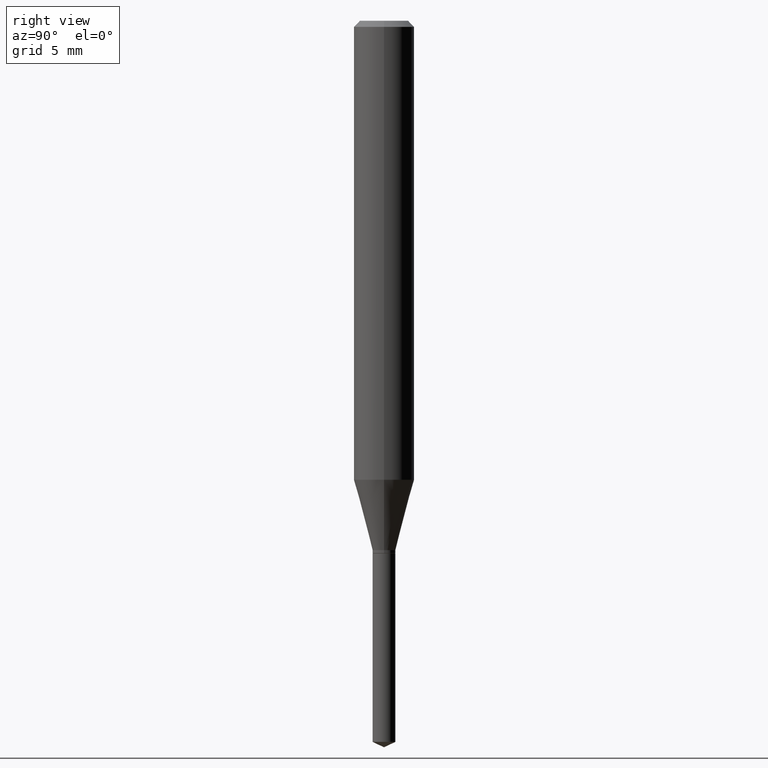
[diagram: clean part render]
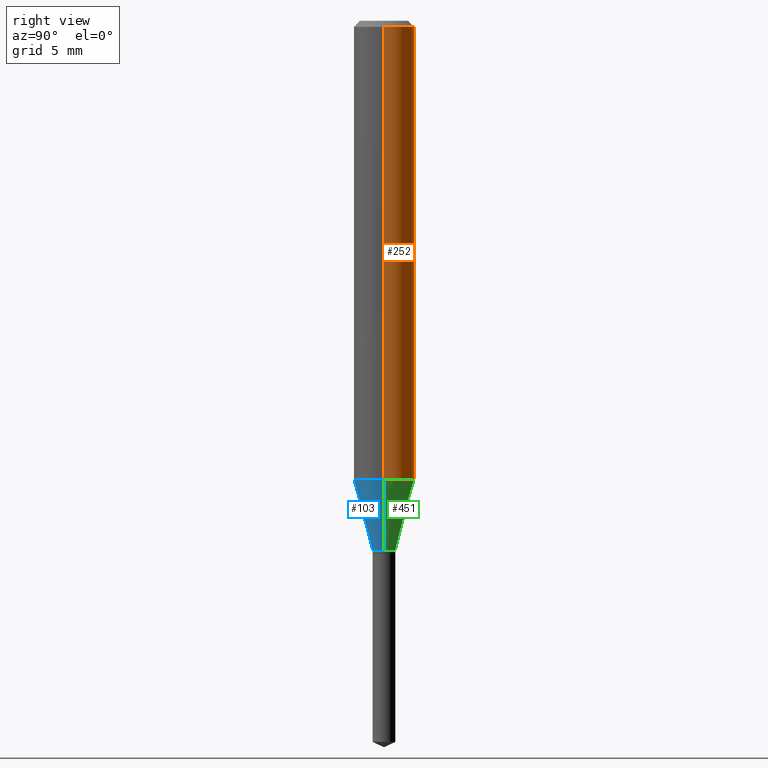
[diagram: same view with three faces highlighted in distinct colors, each labeled with its STEP entity id]
A machine part, right view with three faces highlighted in distinct colors.
Their STEP definitions:

[orange] entity #252 — the highlighted cylindrical surface (edge-blend (fillet) strip) has radius 1.5875 mm, axis along (-0, 0, 1).
#10 = CARTESIAN_POINT ( 'NONE',  ( 0.000000000000000000, 0.000000000000000000, 0.000000000000000000 ) ) ;
#25 = CARTESIAN_POINT ( 'NONE',  ( -0.06250000000000012490, -2.864868739687227081E-15, -0.9477232235855707065 ) ) ;
#33 = CARTESIAN_POINT ( 'NONE',  ( -0.06250000000000001388, -1.232211523286351422E-15, -0.01250000000000008916 ) ) ;
#35 = EDGE_LOOP ( 'NONE', ( #185, #374, #308, #489 ) ) ;
#42 = AXIS2_PLACEMENT_3D ( 'NONE', #181, #96, #140 ) ;
#71 = VECTOR ( 'NONE', #118, 39.37007874015748143 ) ;
#96 = DIRECTION ( 'NONE',  ( -2.445468806185136597E-29, 3.491481338843145583E-15, 1.000000000000000000 ) ) ;
#106 = AXIS2_PLACEMENT_3D ( 'NONE', #409, #365, #327 ) ;
#108 = VERTEX_POINT ( 'NONE', #244 ) ;
#118 = DIRECTION ( 'NONE',  ( -2.445468806185136877E-29, 3.491481338843145188E-15, 1.000000000000000000 ) ) ;
#140 = DIRECTION ( 'NONE',  ( 1.000000000000000000, -6.982962677686264344E-15, 0.000000000000000000 ) ) ;
#163 = FACE_OUTER_BOUND ( 'NONE', #35, .T. ) ;
#168 = EDGE_CURVE ( 'NONE', #339, #108, #315, .T. ) ;
#181 = CARTESIAN_POINT ( 'NONE',  ( 2.317627580175734983E-29, -3.308957949537290487E-15, -0.9477232235855707065 ) ) ;
#185 = ORIENTED_EDGE ( 'NONE', *, *, #275, .T. ) ;
#188 = VECTOR ( 'NONE', #397, 39.37007874015748143 ) ;
#195 = EDGE_CURVE ( 'NONE', #413, #417, #323, .T. ) ;
#212 = CARTESIAN_POINT ( 'NONE',  ( 0.06250000000000012490, -3.745393116892682550E-15, -0.9477232235855707065 ) ) ;
#238 = CYLINDRICAL_SURFACE ( 'NONE', #470, 0.06250000000000006939 ) ;
#244 = CARTESIAN_POINT ( 'NONE',  ( 0.06250000000000001388, -4.800786840909313294E-16, -0.01250000000000008916 ) ) ;
#252 = ADVANCED_FACE ( 'NONE', ( #163 ), #238, .T. ) ;
#271 = DIRECTION ( 'NONE',  ( -2.445468806185136597E-29, 3.491481338843145583E-15, 1.000000000000000000 ) ) ;
#275 = EDGE_CURVE ( 'NONE', #339, #413, #359, .T. ) ;
#298 = EDGE_CURVE ( 'NONE', #108, #417, #414, .T. ) ;
#308 = ORIENTED_EDGE ( 'NONE', *, *, #298, .F. ) ;
#315 = LINE ( 'NONE', #352, #188 ) ;
#323 = LINE ( 'NONE', #464, #71 ) ;
#327 = DIRECTION ( 'NONE',  ( 1.000000000000000000, -6.982962677686265922E-15, 0.000000000000000000 ) ) ;
#339 = VERTEX_POINT ( 'NONE', #212 ) ;
#352 = CARTESIAN_POINT ( 'NONE',  ( 0.06250000000000006939, -4.364351673553921624E-16, 3.047610484872463374E-30 ) ) ;
#359 = CIRCLE ( 'NONE', #42, 0.06250000000000012490 ) ;
#365 = DIRECTION ( 'NONE',  ( -2.445468806185136597E-29, 3.491481338843145583E-15, 1.000000000000000000 ) ) ;
#374 = ORIENTED_EDGE ( 'NONE', *, *, #195, .T. ) ;
#392 = DIRECTION ( 'NONE',  ( 1.000000000000000000, -6.982962677686266711E-15, 4.876176775795935793E-29 ) ) ;
#397 = DIRECTION ( 'NONE',  ( -2.445468806185136877E-29, 3.491481338843145188E-15, 1.000000000000000000 ) ) ;
#409 = CARTESIAN_POINT ( 'NONE',  ( 3.056836007731442729E-31, -4.364351673553962300E-17, -0.01250000000000008916 ) ) ;
#413 = VERTEX_POINT ( 'NONE', #25 ) ;
#414 = CIRCLE ( 'NONE', #106, 0.06250000000000001388 ) ;
#417 = VERTEX_POINT ( 'NONE', #33 ) ;
#464 = CARTESIAN_POINT ( 'NONE',  ( -0.06250000000000006939, 4.440892098500631092E-16, -3.074334431409319267E-30 ) ) ;
#470 = AXIS2_PLACEMENT_3D ( 'NONE', #10, #271, #392 ) ;
#489 = ORIENTED_EDGE ( 'NONE', *, *, #168, .F. ) ;

[blue] entity #103 — the highlighted conical surface has half-angle 15 deg.
#18 = EDGE_LOOP ( 'NONE', ( #127, #178, #94, #177 ) ) ;
#21 = CIRCLE ( 'NONE', #50, 0.02360000000000000292 ) ;
#25 = CARTESIAN_POINT ( 'NONE',  ( -0.06250000000000012490, -2.864868739687227081E-15, -0.9477232235855707065 ) ) ;
#40 = CARTESIAN_POINT ( 'NONE',  ( -0.02360000000000000292, -3.648151869582290642E-15, -1.092900000000000205 ) ) ;
#50 = AXIS2_PLACEMENT_3D ( 'NONE', #398, #207, #167 ) ;
#80 = VECTOR ( 'NONE', #272, 39.37007874015747433 ) ;
#94 = ORIENTED_EDGE ( 'NONE', *, *, #112, .T. ) ;
#103 = ADVANCED_FACE ( 'NONE', ( #423 ), #449, .T. ) ;
#112 = EDGE_CURVE ( 'NONE', #159, #339, #460, .T. ) ;
#120 = CARTESIAN_POINT ( 'NONE',  ( 2.672652858279736287E-29, -3.815839955221674751E-15, -1.092900000000000205 ) ) ;
#121 = EDGE_CURVE ( 'NONE', #413, #339, #126, .T. ) ;
#126 = CIRCLE ( 'NONE', #385, 0.06250000000000012490 ) ;
#127 = ORIENTED_EDGE ( 'NONE', *, *, #245, .F. ) ;
#159 = VERTEX_POINT ( 'NONE', #280 ) ;
#167 = DIRECTION ( 'NONE',  ( 1.000000000000000000, -6.982962677686258033E-15, 0.000000000000000000 ) ) ;
#174 = DIRECTION ( 'NONE',  ( 1.000000000000000000, -6.982962677686264344E-15, 0.000000000000000000 ) ) ;
#177 = ORIENTED_EDGE ( 'NONE', *, *, #121, .F. ) ;
#178 = ORIENTED_EDGE ( 'NONE', *, *, #213, .T. ) ;
#198 = DIRECTION ( 'NONE',  ( -0.2588190451025213501, 5.211531920934551042E-15, 0.9659258262890682012 ) ) ;
#207 = DIRECTION ( 'NONE',  ( -2.445468806185136597E-29, 3.491481338843145583E-15, 1.000000000000000000 ) ) ;
#212 = CARTESIAN_POINT ( 'NONE',  ( 0.06250000000000012490, -3.745393116892682550E-15, -0.9477232235855707065 ) ) ;
#213 = EDGE_CURVE ( 'NONE', #372, #159, #21, .T. ) ;
#223 = AXIS2_PLACEMENT_3D ( 'NONE', #120, #267, #307 ) ;
#245 = EDGE_CURVE ( 'NONE', #372, #413, #389, .T. ) ;
#267 = DIRECTION ( 'NONE',  ( -2.445468806185136597E-29, 3.491481338843145583E-15, 1.000000000000000000 ) ) ;
#272 = DIRECTION ( 'NONE',  ( 0.2588190451025213501, 1.565188264969621968E-15, 0.9659258262890682012 ) ) ;
#277 = CARTESIAN_POINT ( 'NONE',  ( 0.02360000000000000292, -3.980637874415070210E-15, -1.092900000000000205 ) ) ;
#280 = CARTESIAN_POINT ( 'NONE',  ( 0.02360000000000000292, -3.980637874415070210E-15, -1.092900000000000205 ) ) ;
#307 = DIRECTION ( 'NONE',  ( 1.000000000000000000, -6.982962677686258033E-15, 0.000000000000000000 ) ) ;
#331 = CARTESIAN_POINT ( 'NONE',  ( -0.02360000000000000292, -3.659673758000472566E-15, -1.092900000000000205 ) ) ;
#339 = VERTEX_POINT ( 'NONE', #212 ) ;
#372 = VERTEX_POINT ( 'NONE', #331 ) ;
#385 = AXIS2_PLACEMENT_3D ( 'NONE', #427, #431, #174 ) ;
#389 = LINE ( 'NONE', #40, #442 ) ;
#398 = CARTESIAN_POINT ( 'NONE',  ( 2.672652858279736287E-29, -3.815839955221674751E-15, -1.092900000000000205 ) ) ;
#413 = VERTEX_POINT ( 'NONE', #25 ) ;
#423 = FACE_OUTER_BOUND ( 'NONE', #18, .T. ) ;
#427 = CARTESIAN_POINT ( 'NONE',  ( 2.317627580175734983E-29, -3.308957949537290487E-15, -0.9477232235855707065 ) ) ;
#431 = DIRECTION ( 'NONE',  ( -2.445468806185136597E-29, 3.491481338843145583E-15, 1.000000000000000000 ) ) ;
#442 = VECTOR ( 'NONE', #198, 39.37007874015747433 ) ;
#449 = CONICAL_SURFACE ( 'NONE', #223, 0.02360000000000000292, 0.2617993877991500740 ) ;
#460 = LINE ( 'NONE', #277, #80 ) ;

[green] entity #451 — the highlighted conical surface has half-angle 15 deg.
#25 = CARTESIAN_POINT ( 'NONE',  ( -0.06250000000000012490, -2.864868739687227081E-15, -0.9477232235855707065 ) ) ;
#40 = CARTESIAN_POINT ( 'NONE',  ( -0.02360000000000000292, -3.648151869582290642E-15, -1.092900000000000205 ) ) ;
#42 = AXIS2_PLACEMENT_3D ( 'NONE', #181, #96, #140 ) ;
#60 = ORIENTED_EDGE ( 'NONE', *, *, #112, .F. ) ;
#69 = DIRECTION ( 'NONE',  ( -2.445468806185136597E-29, 3.491481338843145583E-15, 1.000000000000000000 ) ) ;
#80 = VECTOR ( 'NONE', #272, 39.37007874015747433 ) ;
#96 = DIRECTION ( 'NONE',  ( -2.445468806185136597E-29, 3.491481338843145583E-15, 1.000000000000000000 ) ) ;
#99 = AXIS2_PLACEMENT_3D ( 'NONE', #336, #69, #145 ) ;
#102 = CARTESIAN_POINT ( 'NONE',  ( 2.672652858279736287E-29, -3.815839955221674751E-15, -1.092900000000000205 ) ) ;
#112 = EDGE_CURVE ( 'NONE', #159, #339, #460, .T. ) ;
#115 = CIRCLE ( 'NONE', #99, 0.02360000000000000292 ) ;
#133 = ORIENTED_EDGE ( 'NONE', *, *, #424, .T. ) ;
#140 = DIRECTION ( 'NONE',  ( 1.000000000000000000, -6.982962677686264344E-15, 0.000000000000000000 ) ) ;
#145 = DIRECTION ( 'NONE',  ( 1.000000000000000000, -6.982962677686258033E-15, 0.000000000000000000 ) ) ;
#150 = EDGE_LOOP ( 'NONE', ( #133, #263, #390, #60 ) ) ;
#153 = CONICAL_SURFACE ( 'NONE', #194, 0.02360000000000000292, 0.2617993877991500740 ) ;
#159 = VERTEX_POINT ( 'NONE', #280 ) ;
#181 = CARTESIAN_POINT ( 'NONE',  ( 2.317627580175734983E-29, -3.308957949537290487E-15, -0.9477232235855707065 ) ) ;
#190 = DIRECTION ( 'NONE',  ( 1.000000000000000000, -6.982962677686258033E-15, 0.000000000000000000 ) ) ;
#194 = AXIS2_PLACEMENT_3D ( 'NONE', #102, #220, #190 ) ;
#198 = DIRECTION ( 'NONE',  ( -0.2588190451025213501, 5.211531920934551042E-15, 0.9659258262890682012 ) ) ;
#212 = CARTESIAN_POINT ( 'NONE',  ( 0.06250000000000012490, -3.745393116892682550E-15, -0.9477232235855707065 ) ) ;
#220 = DIRECTION ( 'NONE',  ( -2.445468806185136597E-29, 3.491481338843145583E-15, 1.000000000000000000 ) ) ;
#245 = EDGE_CURVE ( 'NONE', #372, #413, #389, .T. ) ;
#263 = ORIENTED_EDGE ( 'NONE', *, *, #245, .T. ) ;
#264 = FACE_OUTER_BOUND ( 'NONE', #150, .T. ) ;
#272 = DIRECTION ( 'NONE',  ( 0.2588190451025213501, 1.565188264969621968E-15, 0.9659258262890682012 ) ) ;
#275 = EDGE_CURVE ( 'NONE', #339, #413, #359, .T. ) ;
#277 = CARTESIAN_POINT ( 'NONE',  ( 0.02360000000000000292, -3.980637874415070210E-15, -1.092900000000000205 ) ) ;
#280 = CARTESIAN_POINT ( 'NONE',  ( 0.02360000000000000292, -3.980637874415070210E-15, -1.092900000000000205 ) ) ;
#331 = CARTESIAN_POINT ( 'NONE',  ( -0.02360000000000000292, -3.659673758000472566E-15, -1.092900000000000205 ) ) ;
#336 = CARTESIAN_POINT ( 'NONE',  ( 2.672652858279736287E-29, -3.815839955221674751E-15, -1.092900000000000205 ) ) ;
#339 = VERTEX_POINT ( 'NONE', #212 ) ;
#359 = CIRCLE ( 'NONE', #42, 0.06250000000000012490 ) ;
#372 = VERTEX_POINT ( 'NONE', #331 ) ;
#389 = LINE ( 'NONE', #40, #442 ) ;
#390 = ORIENTED_EDGE ( 'NONE', *, *, #275, .F. ) ;
#413 = VERTEX_POINT ( 'NONE', #25 ) ;
#424 = EDGE_CURVE ( 'NONE', #159, #372, #115, .T. ) ;
#442 = VECTOR ( 'NONE', #198, 39.37007874015747433 ) ;
#451 = ADVANCED_FACE ( 'NONE', ( #264 ), #153, .T. ) ;
#460 = LINE ( 'NONE', #277, #80 ) ;